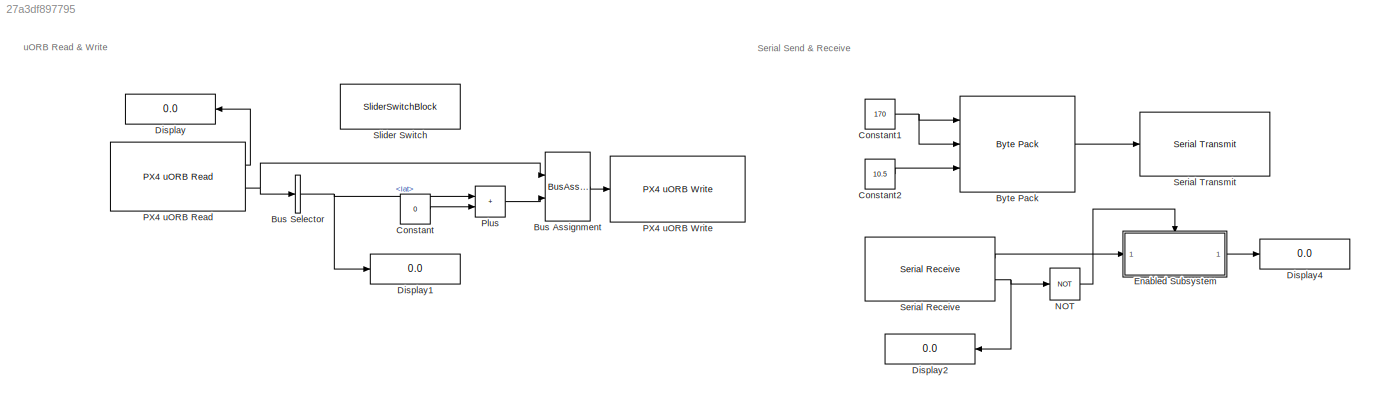
MODEL slx_27a3df897795
KIND model
CONFIG AbsTol = auto
CONFIG EnableMultiTasking = on
CONFIG FixedStep = auto
CONFIG MaxStep = 0.005
CONFIG MinStep = auto
CONFIG RelTol = 1e-3
CONFIG SampleTimeConstraint = Unconstrained
CONFIG SolverName = FixedStepAuto
CONFIG StartTime = 0.0
CONFIG StopTime = inf
BLOCK [BusAssignment] Bus Assignment
  AssignedSignals = lat
  Ports = [2, 1]
BLOCK [BusSelector] Bus Selector
  OutputSignals = lat
  Ports = [1, 1]
BLOCK [Reference] Byte Pack  REF=etargetslib/Byte Pack
  Ports = [3, 1]
  SourceBlock = etargetslib/Byte Pack
  SourceProductBaseCode = ME
  SourceType = Byte pack
BLOCK [Constant] Constant
  Value = 0
BLOCK [Constant] Constant1
  OutDataTypeStr = uint8
  Value = 170
BLOCK [Constant] Constant2
  OutDataTypeStr = double
  Value = 10.5
BLOCK [Display] Display
  Decimation = 1
  NameLocation = top
  Ports = [1]
BLOCK [Display] Display1
  Decimation = 1
  Ports = [1]
BLOCK [Display] Display2
  Decimation = 1
  NameLocation = top
  Ports = [1]
BLOCK [Display] Display4
  Decimation = 1
  Ports = [1]
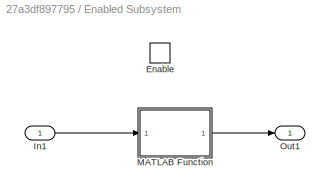
BLOCK [SubSystem] Enabled Subsystem
  Ports = [1, 1, 1]
  RequestExecContextInheritance = off
  TreatAsAtomicUnit = on
BLOCK [EnablePort] Enabled Subsystem/Enable
  Ports = []
BLOCK [Inport] Enabled Subsystem/In1
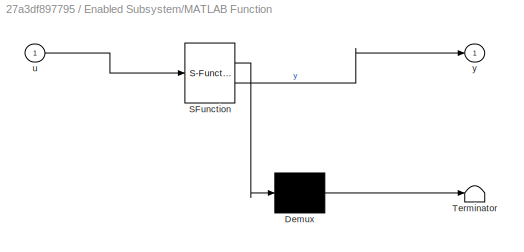
BLOCK [SubSystem] Enabled Subsystem/MATLAB Function
  ErrorFcn = Stateflow.Translate.translate
  PermitHierarchicalResolution = ExplicitOnly
  Ports = [1, 1]
  RequestExecContextInheritance = off
  SFBlockType = MATLAB Function
  TreatAsAtomicUnit = on
BLOCK [Demux] Enabled Subsystem/MATLAB Function/ Demux 
  Outputs = 1
  Ports = [1, 1]
BLOCK [S-Function] Enabled Subsystem/MATLAB Function/ SFunction 
  EnableBusSupport = on
  FunctionName = sf_sfun
  PortCounts = [1 2]
  Ports = [1, 2]
  SFcnIsStateOwnerBlock = off
  SFunctionDeploymentMode = off
  Tag = Stateflow S-Function 2
BLOCK [Terminator] Enabled Subsystem/MATLAB Function/ Terminator 
BLOCK [Inport] Enabled Subsystem/MATLAB Function/u
BLOCK [Outport] Enabled Subsystem/MATLAB Function/y
BLOCK [Outport] Enabled Subsystem/Out1
BLOCK [Logic] NOT
  AllPortsSameDT = off
  IconShape = distinctive
  Operator = NOT
  OutDataTypeStr = boolean
  Ports = [1, 1]
BLOCK [Reference] PX4 uORB Read  REF=px4uORBlib/PX4 uORB Read
  Ports = [0, 2]
  SourceBlock = px4uORBlib/PX4 uORB Read
  SourceProductBaseCode = PX4AUTOPILOTS
  SourceType = PX4 uORB Read
BLOCK [Reference] PX4 uORB Write  REF=px4uORBlib/PX4 uORB Write
  Ports = [1]
  SourceBlock = px4uORBlib/PX4 uORB Write
  SourceProductBaseCode = PX4AUTOPILOTS
  SourceType = PX4 uORB Write
BLOCK [Sum] Plus
  IconShape = rectangular
  OutDataTypeStr = int32
  Ports = [2, 1]
BLOCK [Reference] Serial Receive  REF=px4lib/Serial Receive
  Ports = [0, 2]
  SourceBlock = px4lib/Serial Receive
  SourceProductBaseCode = PX4AUTOPILOTS
  SourceType = PX4 Serial Receive
BLOCK [Reference] Serial Transmit  REF=px4lib/Serial Transmit
  Ports = [1]
  SourceBlock = px4lib/Serial Transmit
  SourceProductBaseCode = PX4AUTOPILOTS
  SourceType = PX4 Serial Transmit
BLOCK [SliderSwitchBlock] Slider Switch
ANNOTATION (root): Serial Send & Receive
ANNOTATION (root): uORB Read & Write
LINE Bus Assignment:1 -> PX4 uORB Write:1
NET Bus Selector:1 -> Display1:1, Plus:1
LINE Byte Pack:1 -> Serial Transmit:1
NET Constant1:1 -> Byte Pack:1, Byte Pack:2
LINE Constant2:1 -> Byte Pack:3
LINE Constant:1 -> Plus:2
LINE Enabled Subsystem/In1:1 -> Enabled Subsystem/MATLAB Function:1
LINE Enabled Subsystem/MATLAB Function:1 -> Enabled Subsystem/Out1:1
LINE Enabled Subsystem:1 -> Display4:1
LINE NOT:1 -> Enabled Subsystem:enable
LINE PX4 uORB Read:1 -> Display:1
NET PX4 uORB Read:2 -> Bus Assignment:1, Bus Selector:1
LINE Plus:1 -> Bus Assignment:2
LINE Serial Receive:1 -> Enabled Subsystem:1
NET Serial Receive:2 -> Display2:1, NOT:1
note: NET lines group one-source signal fan-out (src -> all destinations, sorted); 1:1 wires keep LINE
CHART Enabled
Subsystem/MATLAB Function states=1 transitions=1
  STATE_LABEL 'eML_blk_kernel()'
  STATE_LABEL "SCRIPT:\nfunction y = fcn(u)\n  y = zeros(1,1);\n    for i = 1:20\n        if i < 12\n            if u(i) == 170 && u(i + 1) == 170\n                y(1) = typecast( uint8([u(i + 2),u(i + 3),u(i + 4),u(i + 5), u(i + 6),u(i + 7),u(i + 8),u(i + 9)]),'double');\n            end\n        end\n    end\n    \n"
CHART  states=0 transitions=0
